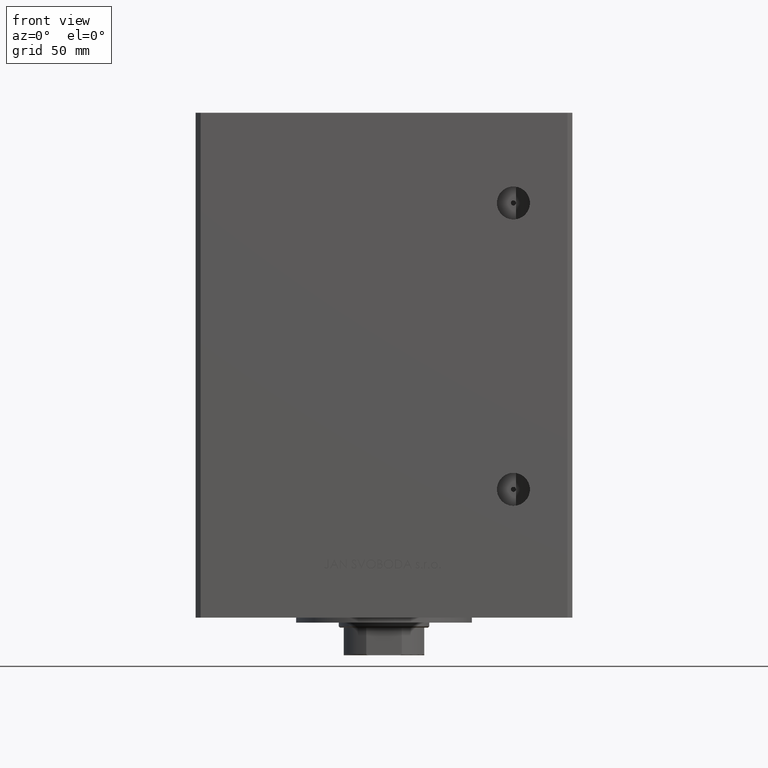
[diagram: clean part render]
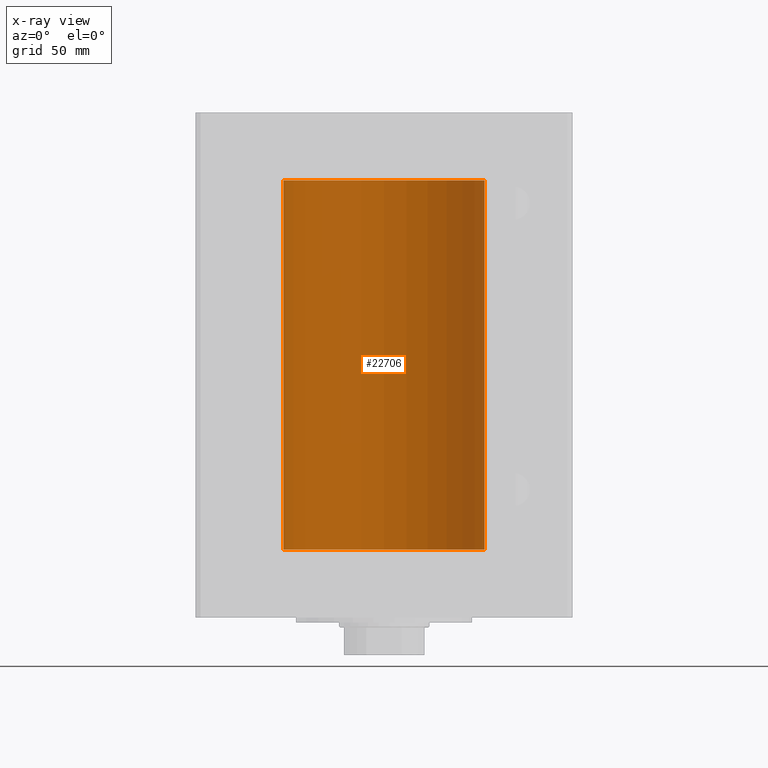
[diagram: x-ray — body ghosted, one internal face saturated and labeled with its STEP entity id]
A machine part, front view, then the same camera in x-ray: the body is ghosted and one INTERNAL B-rep face — a face not visible from any outside direction — is saturated and labeled: STEP entity #22706.
In plain terms, the highlighted cylindrical surface (partial cylindrical patch) has radius 40 mm, axis along (-0, -0, -1).
Its self-contained STEP definition (entity closure, byte-faithful):
#3918 = VECTOR ( 'NONE', #26009, 1000.000000000000000 ) ;
#5271 = DIRECTION ( 'NONE',  ( -0.000000000000000000, -0.000000000000000000, -1.000000000000000000 ) ) ;
#9548 = EDGE_CURVE ( 'NONE', #25365, #41870, #14392, .T. ) ;
#9940 = CIRCLE ( 'NONE', #36742, 40.00000000000000000 ) ;
#10064 = CARTESIAN_POINT ( 'NONE',  ( 0.000000000000000000, 0.000000000000000000, 0.000000000000000000 ) ) ;
#10468 = ORIENTED_EDGE ( 'NONE', *, *, #21850, .T. ) ;
#10698 = AXIS2_PLACEMENT_3D ( 'NONE', #40889, #17254, #33270 ) ;
#13420 = CYLINDRICAL_SURFACE ( 'NONE', #10698, 40.00000000000000000 ) ;
#14392 = CIRCLE ( 'NONE', #42839, 40.00000000000000000 ) ;
#14430 = EDGE_LOOP ( 'NONE', ( #41086, #47819, #10468, #49644 ) ) ;
#14630 = VERTEX_POINT ( 'NONE', #15933 ) ;
#15933 = CARTESIAN_POINT ( 'NONE',  ( 40.00000000000000000, 4.898587196589413026E-15, 0.000000000000000000 ) ) ;
#17254 = DIRECTION ( 'NONE',  ( -0.000000000000000000, -0.000000000000000000, -1.000000000000000000 ) ) ;
#18909 = VECTOR ( 'NONE', #5271, 1000.000000000000000 ) ;
#19464 = CARTESIAN_POINT ( 'NONE',  ( -40.00000000000000000, 0.000000000000000000, 147.0000000000000000 ) ) ;
#20295 = LINE ( 'NONE', #28170, #18909 ) ;
#21080 = FACE_OUTER_BOUND ( 'NONE', #14430, .T. ) ;
#21168 = EDGE_CURVE ( 'NONE', #14630, #29627, #9940, .T. ) ;
#21774 = DIRECTION ( 'NONE',  ( -0.000000000000000000, 0.000000000000000000, 1.000000000000000000 ) ) ;
#21850 = EDGE_CURVE ( 'NONE', #41870, #29627, #20295, .T. ) ;
#22706 = ADVANCED_FACE ( 'NONE', ( #21080 ), #13420, .F. ) ;
#25365 = VERTEX_POINT ( 'NONE', #45501 ) ;
#26009 = DIRECTION ( 'NONE',  ( -0.000000000000000000, -0.000000000000000000, -1.000000000000000000 ) ) ;
#28170 = CARTESIAN_POINT ( 'NONE',  ( -40.00000000000000000, 0.000000000000000000, 147.0000000000000000 ) ) ;
#29627 = VERTEX_POINT ( 'NONE', #49909 ) ;
#33270 = DIRECTION ( 'NONE',  ( -1.000000000000000000, 0.000000000000000000, 0.000000000000000000 ) ) ;
#33472 = DIRECTION ( 'NONE',  ( 1.000000000000000000, 0.000000000000000000, 0.000000000000000000 ) ) ;
#36742 = AXIS2_PLACEMENT_3D ( 'NONE', #10064, #21774, #33472 ) ;
#38208 = CARTESIAN_POINT ( 'NONE',  ( 40.00000000000000000, 4.898587196589413026E-15, 147.0000000000000000 ) ) ;
#40035 = DIRECTION ( 'NONE',  ( 1.000000000000000000, 0.000000000000000000, 0.000000000000000000 ) ) ;
#40889 = CARTESIAN_POINT ( 'NONE',  ( 0.000000000000000000, 0.000000000000000000, 147.0000000000000000 ) ) ;
#41086 = ORIENTED_EDGE ( 'NONE', *, *, #42995, .F. ) ;
#41843 = CARTESIAN_POINT ( 'NONE',  ( 0.000000000000000000, 0.000000000000000000, 147.0000000000000000 ) ) ;
#41870 = VERTEX_POINT ( 'NONE', #19464 ) ;
#42839 = AXIS2_PLACEMENT_3D ( 'NONE', #41843, #45892, #40035 ) ;
#42995 = EDGE_CURVE ( 'NONE', #25365, #14630, #45823, .T. ) ;
#45501 = CARTESIAN_POINT ( 'NONE',  ( 40.00000000000000000, 4.898587196589413026E-15, 147.0000000000000000 ) ) ;
#45823 = LINE ( 'NONE', #38208, #3918 ) ;
#45892 = DIRECTION ( 'NONE',  ( -0.000000000000000000, 0.000000000000000000, 1.000000000000000000 ) ) ;
#47819 = ORIENTED_EDGE ( 'NONE', *, *, #9548, .T. ) ;
#49644 = ORIENTED_EDGE ( 'NONE', *, *, #21168, .F. ) ;
#49909 = CARTESIAN_POINT ( 'NONE',  ( -40.00000000000000000, 0.000000000000000000, 0.000000000000000000 ) ) ;